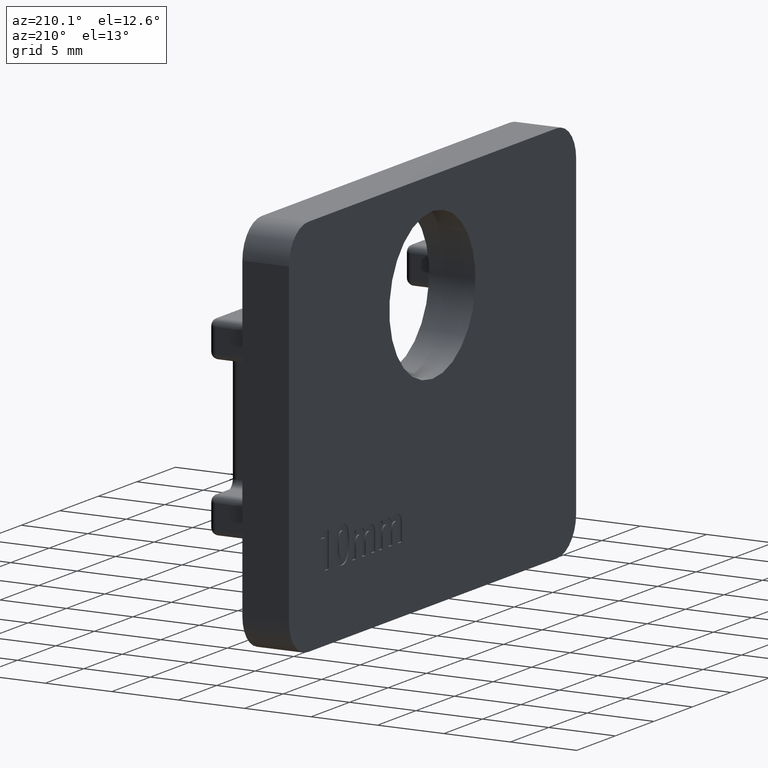
[diagram: clean part render]
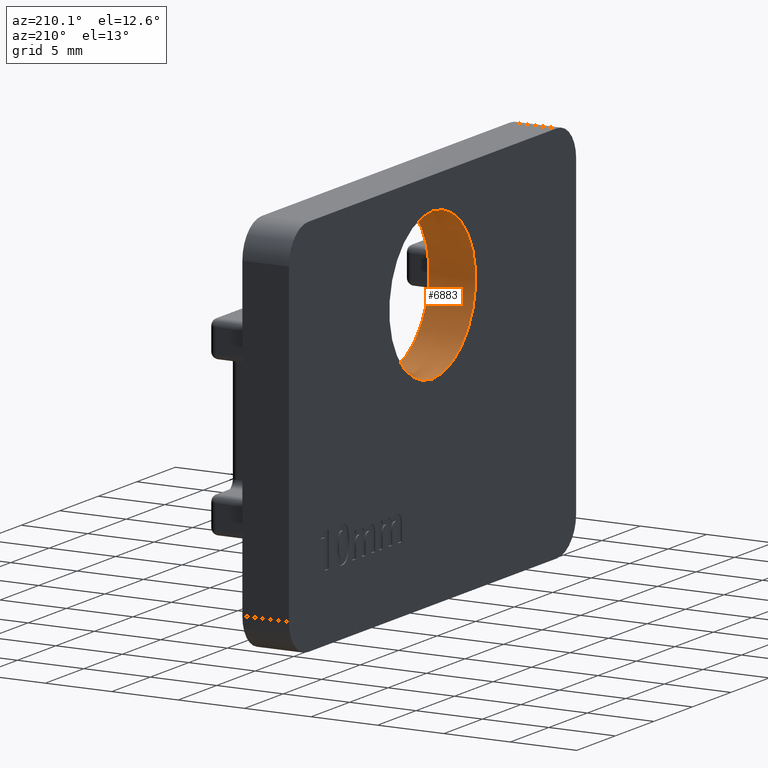
[diagram: same view with one face highlighted and labeled with its STEP entity id]
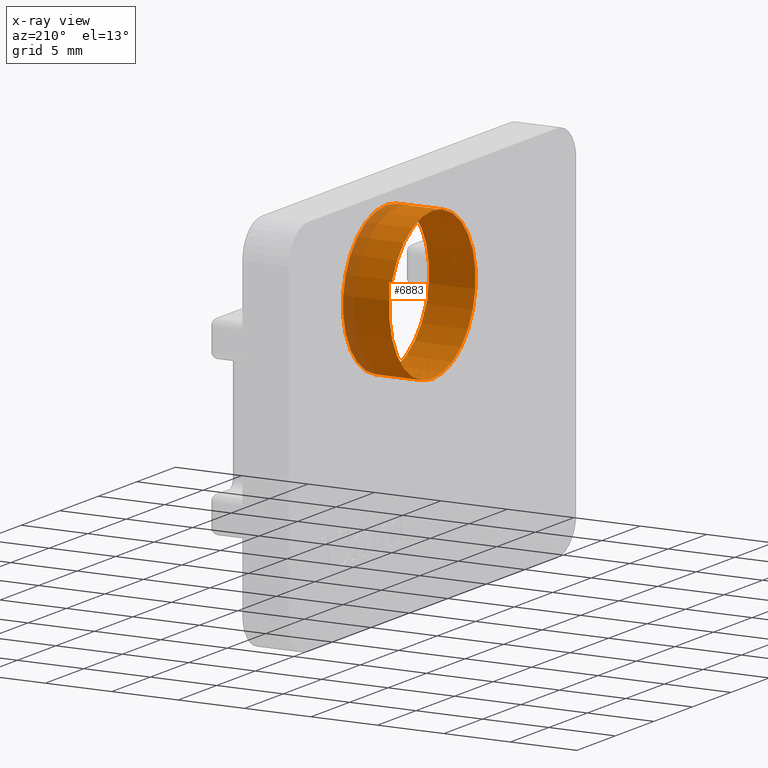
[diagram: x-ray of the same camera — body ghosted, the highlighted face saturated]
A machine part, auxiliary view. The second image highlights one B-rep face of the part: STEP entity #6883.
The next image is the same camera in x-ray: the body ghosted, the highlighted face saturated — about 13% of this face is hidden behind the body in this view.
In plain terms, the highlighted cylindrical surface (bore or boss wall) has radius 5.6 mm, axis along (-1, -0, -0).
Its self-contained STEP definition (entity closure, byte-faithful):
#1190 = CIRCLE ( 'NONE', #18111, 5.599999999999999645 ) ;
#1247 = DIRECTION ( 'NONE',  ( 1.000000000000000000, 0.000000000000000000, 0.000000000000000000 ) ) ;
#2843 = CIRCLE ( 'NONE', #23879, 5.599999999999999645 ) ;
#5423 = DIRECTION ( 'NONE',  ( -1.000000000000000000, -0.000000000000000000, -0.000000000000000000 ) ) ;
#5852 = ORIENTED_EDGE ( 'NONE', *, *, #8022, .T. ) ;
#6359 = CARTESIAN_POINT ( 'NONE',  ( -1.750000000000000000, 3.090363970100991812E-16, 6.350000000000001421 ) ) ;
#6883 = ADVANCED_FACE ( 'NONE', ( #13650, #16231 ), #11290, .F. ) ;
#7020 = DIRECTION ( 'NONE',  ( 0.000000000000000000, 0.000000000000000000, 1.000000000000000000 ) ) ;
#8022 = EDGE_CURVE ( 'NONE', #14941, #14941, #1190, .T. ) ;
#8211 = DIRECTION ( 'NONE',  ( 1.000000000000000000, 0.000000000000000000, 0.000000000000000000 ) ) ;
#9083 = EDGE_LOOP ( 'NONE', ( #5852 ) ) ;
#10053 = CARTESIAN_POINT ( 'NONE',  ( -1.750000000000000000, 3.090363970100991812E-16, 0.7500000000000015543 ) ) ;
#11290 = CYLINDRICAL_SURFACE ( 'NONE', #19474, 5.600000000000000533 ) ;
#11564 = ORIENTED_EDGE ( 'NONE', *, *, #17365, .F. ) ;
#11745 = CARTESIAN_POINT ( 'NONE',  ( 1.750000000000000000, 3.090363970100991812E-16, 0.7500000000000015543 ) ) ;
#12377 = CARTESIAN_POINT ( 'NONE',  ( 1.750000000000000000, 3.090363970100991812E-16, 6.350000000000001421 ) ) ;
#13650 = FACE_OUTER_BOUND ( 'NONE', #9083, .T. ) ;
#14941 = VERTEX_POINT ( 'NONE', #11745 ) ;
#16231 = FACE_OUTER_BOUND ( 'NONE', #21125, .T. ) ;
#16451 = CARTESIAN_POINT ( 'NONE',  ( 1.750000000000000000, 3.090363970100991812E-16, 6.350000000000001421 ) ) ;
#17365 = EDGE_CURVE ( 'NONE', #22788, #22788, #2843, .T. ) ;
#18111 = AXIS2_PLACEMENT_3D ( 'NONE', #12377, #1247, #19803 ) ;
#19474 = AXIS2_PLACEMENT_3D ( 'NONE', #16451, #5423, #7020 ) ;
#19803 = DIRECTION ( 'NONE',  ( 0.000000000000000000, 0.000000000000000000, -1.000000000000000000 ) ) ;
#21125 = EDGE_LOOP ( 'NONE', ( #11564 ) ) ;
#22788 = VERTEX_POINT ( 'NONE', #10053 ) ;
#22985 = DIRECTION ( 'NONE',  ( 0.000000000000000000, 0.000000000000000000, -1.000000000000000000 ) ) ;
#23879 = AXIS2_PLACEMENT_3D ( 'NONE', #6359, #8211, #22985 ) ;